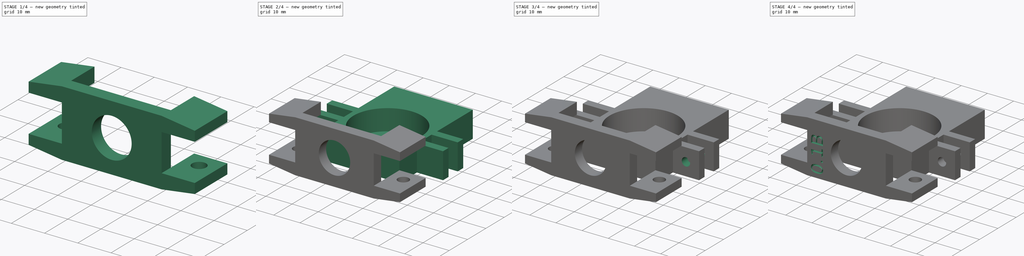
[diagram: build sequence overview — one tinted view per stage of 4, left to right]
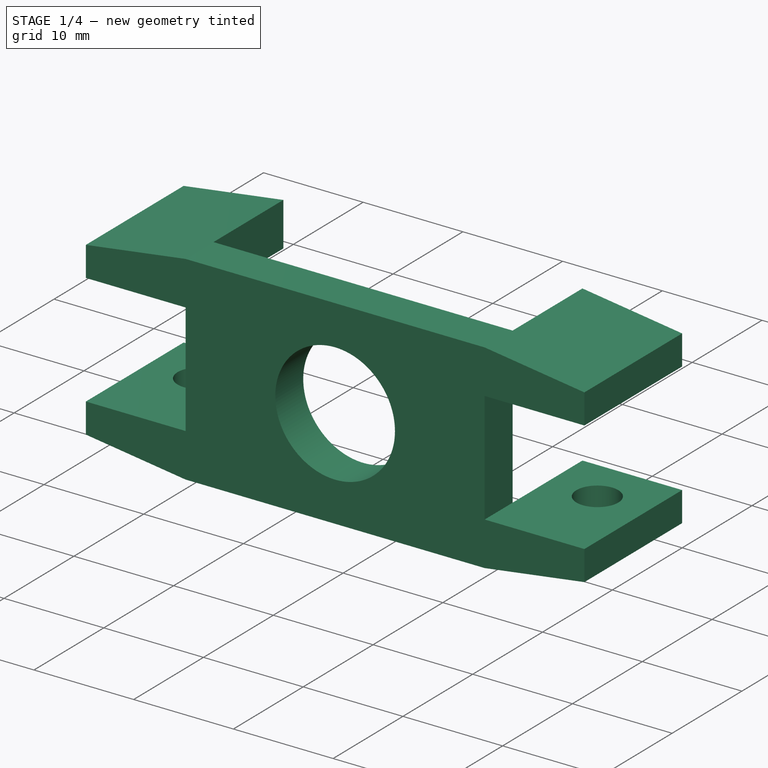
[diagram: stage 1 of 4 — iso view after this stage's code; geometry added in this stage tinted green]
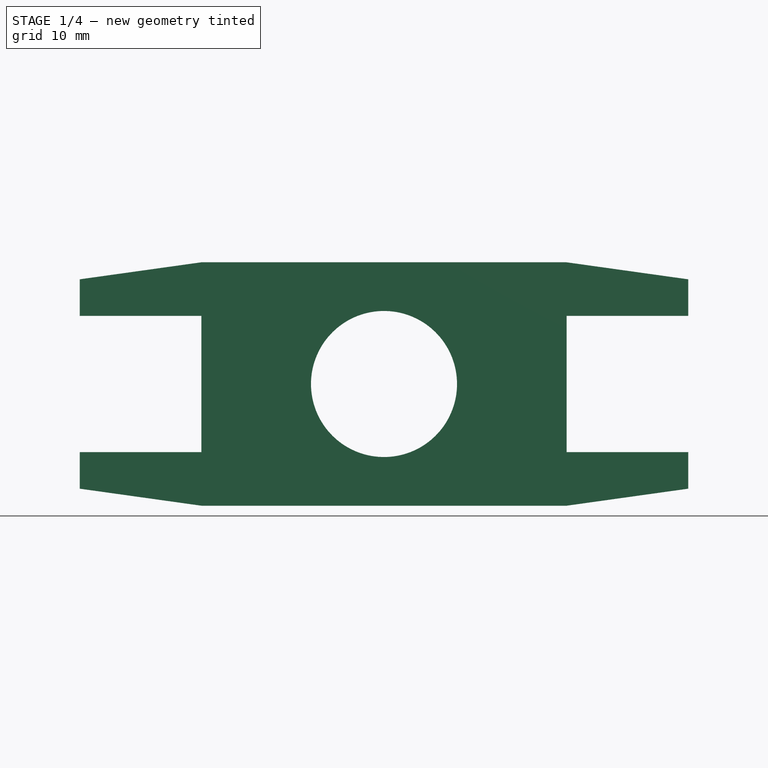
[diagram: stage 1 of 4 — front view after this stage's code; geometry added in this stage tinted green]
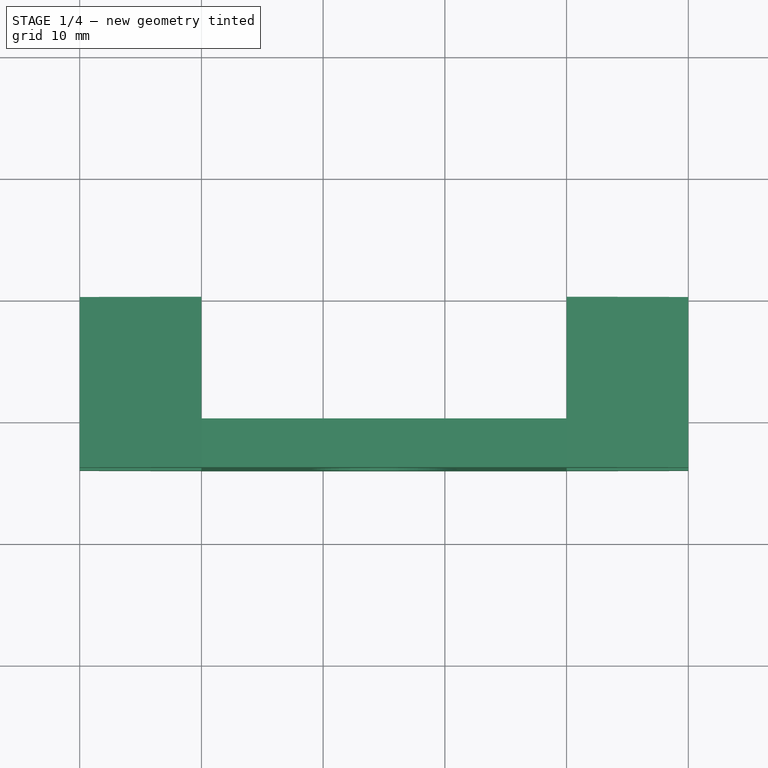
[diagram: stage 1 of 4 — top view after this stage's code; geometry added in this stage tinted green]
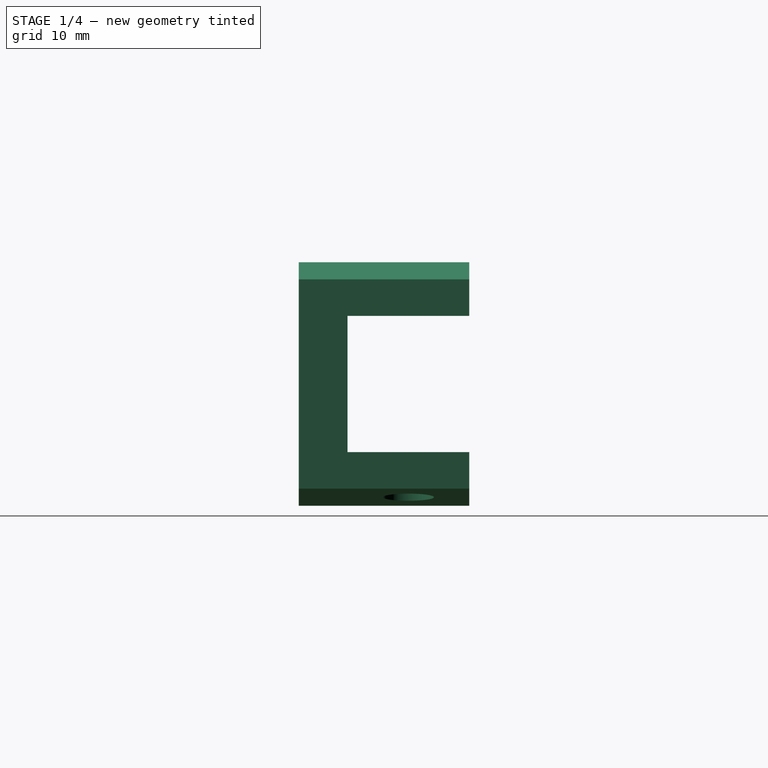
[diagram: stage 1 of 4 — right view after this stage's code; geometry added in this stage tinted green]
FCSTD DOCUMENT  (FreeCAD 1.0R39109 (Git))
Label: Front_Wheel_Hub
License: All rights reserved
LicenseURL: https://en.wikipedia.org/wiki/All_rights_reserved
objects: Sketcher::SketchObject×11, PartDesign::Pocket×7, PartDesign::Pad×2, Part::Part2DObjectPython×2, Part::Extrusion×2, Spreadsheet::Sheet×2, PartDesign::Body×2, Part::Cut×2
note: 57 computed .brp shape members not serialized (recipe doc carries the construction recipe); baked Part::Feature solids carry a one-line shape summary decoded from their .brp

FEATURE [Sketcher::SketchObject] Sketch004  label="Base Shape"
  ArcFitTolerance = 1e-06
  AttachmentSupport = -> [XZ_Plane001]
  FullyConstrained = true
  MakeInternals = false
  MapMode = 5
  Placement = pos=(0,0,0) rot=(1,0,0;1.5708rad)
  sketch-geometry (18):
    g0: LineSegment StartX=0 StartY=0 StartZ=0 EndX=30 EndY=0 EndZ=0
    g1: LineSegment StartX=30 StartY=20 StartZ=0 EndX=0 EndY=20 EndZ=0
    g2: LineSegment StartX=0 StartY=20 StartZ=0 EndX=-10 EndY=18.6 EndZ=0
    g3: LineSegment StartX=-10 StartY=18.6 StartZ=0 EndX=-10 EndY=15.6 EndZ=0
    g4: LineSegment StartX=-10 StartY=15.6 StartZ=0 EndX=-1.8e-15 EndY=15.6 EndZ=0
    g5: LineSegment StartX=-1.8e-15 StartY=4.4 StartZ=0 EndX=-10 EndY=4.4 EndZ=0
    g6: LineSegment StartX=-10 StartY=4.4 StartZ=0 EndX=-10 EndY=1.4 EndZ=0
    g7: LineSegment StartX=-10 StartY=1.4 StartZ=0 EndX=0 EndY=0 EndZ=0
    g8: LineSegment [constr] StartX=15 StartY=20 StartZ=0 EndX=15 EndY=0 EndZ=0
    g9: LineSegment StartX=30 StartY=20 StartZ=0 EndX=40 EndY=18.6 EndZ=0
    g10: LineSegment StartX=40 StartY=18.6 StartZ=0 EndX=40 EndY=15.6 EndZ=0
    g11: LineSegment StartX=40 StartY=15.6 StartZ=0 EndX=30 EndY=15.6 EndZ=0
    g12: LineSegment StartX=30 StartY=4.4 StartZ=0 EndX=40 EndY=4.4 EndZ=0
    g13: LineSegment StartX=40 StartY=4.4 StartZ=0 EndX=40 EndY=1.4 EndZ=0
    g14: LineSegment StartX=40 StartY=1.4 StartZ=0 EndX=30 EndY=-2.7e-15 EndZ=0
    g15: LineSegment StartX=-1.8e-15 StartY=15.6 StartZ=0 EndX=-1.8e-15 EndY=4.4 EndZ=0
    g16: LineSegment StartX=30 StartY=15.6 StartZ=0 EndX=30 EndY=4.4 EndZ=0
    g17: Circle CenterX=15 CenterY=10 CenterZ=0 NormalX=0 NormalY=0 NormalZ=1 AngleXU=0 Radius=6
  constraints (45):
    c: Horizontal(g0)
    c: Horizontal(g1)
    c: Distance(g0,g0) = 30
    c: Distance(g0,g1) = 20
    c: Coincident(g0,g-1)
    c: Coincident(g2,g1)
    c: Coincident(g3,g2)
    c: Vertical(g3)
    c: Coincident(g4,g3)
    c: Horizontal(g4)
    c: Horizontal(g5)
    c: Coincident(g6,g5)
    c: Vertical(g6)
    c: Coincident(g7,g6)
    c: Coincident(g7,g0)
    c: DistanceY(g3,g3) = 3
    c: Equal(g3,g6)
    c: Equal(g4,g5)
    c: DistanceX(g4,g4) = 10
    c: Distance(g0,g5) = 4.4
    c: Equal(g7,g2)
    c: Symmetric(g1,g1,g8)
    c: Symmetric(g0,g0,g8)
    c: Symmetric(g2,g9,g8)
    c: Symmetric(g2,g9,g8)
    c: Symmetric(g3,g10,g8)
    c: Symmetric(g3,g10,g8)
    c: Symmetric(g4,g11,g8)
    c: Symmetric(g4,g11,g8)
    c: Symmetric(g5,g12,g8)
    c: Symmetric(g5,g12,g8)
    c: Symmetric(g6,g13,g8)
    c: Symmetric(g6,g13,g8)
    c: Symmetric(g7,g14,g8)
    c: Symmetric(g7,g14,g8)
    c: Coincident(g15,g4)
    c: Coincident(g15,g5)
    c: Vertical(g15)
    c: Coincident(g16,g11)
    c: Coincident(g16,g12)
    c: Vertical(g16)
    c: PointOnObject(g1,g15)
    c: DistanceY(g15,g15) = 11.2
    c: Diameter(g17) = 12
    c: Symmetric(g8,g8,g17)
FEATURE [PartDesign::Pad] Pad001
  Direction = (0,-1,2e-16)
  Length = 14
  Length2 = 10
  Placement = pos=(0,0,0) rot=(1,0,0;1.5708rad)
  Profile = -> Sketch004
  ReferenceAxis = -> Sketch004 [N_Axis]
  Refine = true
  Suppressed = false
  Type = 0
FEATURE [Sketcher::SketchObject] Sketch005
  ArcFitTolerance = 1e-06
  AttachmentSupport = -> [Pad001]
  ExternalGeometry = -> [Pad001]
  FullyConstrained = true
  MakeInternals = false
  MapMode = 5
  Placement = pos=(0,2.2e-15,0) rot=(-1,0,0;1.5708rad)
  sketch-geometry (4):
    g0: LineSegment StartX=0 StartY=0 StartZ=0 EndX=0 EndY=-20 EndZ=0
    g1: LineSegment StartX=0 StartY=-20 StartZ=0 EndX=30 EndY=-20 EndZ=0
    g2: LineSegment StartX=30 StartY=-20 StartZ=0 EndX=30 EndY=0 EndZ=0
    g3: LineSegment StartX=30 StartY=0 StartZ=0 EndX=0 EndY=0 EndZ=0
  constraints (10):
    c: Coincident(g0,g1)
    c: Coincident(g1,g2)
    c: Coincident(g2,g3)
    c: Coincident(g3,g0)
    c: Vertical(g0)
    c: Vertical(g2)
    c: Horizontal(g1)
    c: Horizontal(g3)
    c: Coincident(g0,g-1)
    c: Coincident(g1,g-4)
FEATURE [PartDesign::Pocket] Pocket003
  BaseFeature = -> Pad001
  Direction = (0,-1,-2e-16)
  Length = 10
  Length2 = 5
  Placement = pos=(0,0,0) rot=(1,0,0;1.5708rad)
  Profile = -> Sketch005
  ReferenceAxis = -> Sketch005 [N_Axis]
  Refine = true
  Suppressed = false
  Type = 0
FEATURE [Sketcher::SketchObject] Sketch006
  ArcFitTolerance = 1e-06
  AttachmentSupport = -> [XY_Plane001]
  ExternalGeometry = -> [Pocket003]
  FullyConstrained = true
  MakeInternals = false
  MapMode = 5
  sketch-geometry (5):
    g0: Circle CenterX=35 CenterY=-5 CenterZ=0 NormalX=0 NormalY=0 NormalZ=1 AngleXU=0 Radius=2.1
    g1: Circle CenterX=-5 CenterY=-5 CenterZ=0 NormalX=0 NormalY=0 NormalZ=1 AngleXU=0 Radius=2.1
    g2: LineSegment [constr] StartX=-5 StartY=4.3e-15 StartZ=0 EndX=-5 EndY=-14 EndZ=0
    g3: LineSegment [constr] StartX=35 StartY=4.3e-15 StartZ=0 EndX=35 EndY=-14 EndZ=0
    g4: LineSegment [constr] StartX=-5 StartY=-5 StartZ=0 EndX=35 EndY=-5 EndZ=0
  constraints (12):
    c: Diameter(g0) = 4.2
    c: Diameter(g1) = 4.2
    c: Distance(g1,g-4) = 5
    c: Symmetric(g-5,g-5,g2)
    c: Symmetric(g-6,g-6,g2)
    c: Symmetric(g-3,g-3,g3)
    c: Symmetric(g-7,g-7,g3)
    c: PointOnObject(g1,g2)
    c: PointOnObject(g0,g3)
    c: Coincident(g4,g1)
    c: Coincident(g4,g0)
    c: Horizontal(g4)
FEATURE [PartDesign::Pocket] Pocket004
  BaseFeature = -> Pocket003
  Direction = (0,0,-1)
  Length = 0
  Length2 = 5
  Placement = pos=(0,0,0) rot=(1,0,0;1.5708rad)
  Profile = -> Sketch006
  ReferenceAxis = -> Sketch006 [N_Axis]
  Refine = true
  Suppressed = false
  Type = 3
  UpToFace = -> Pocket003 [Face17]
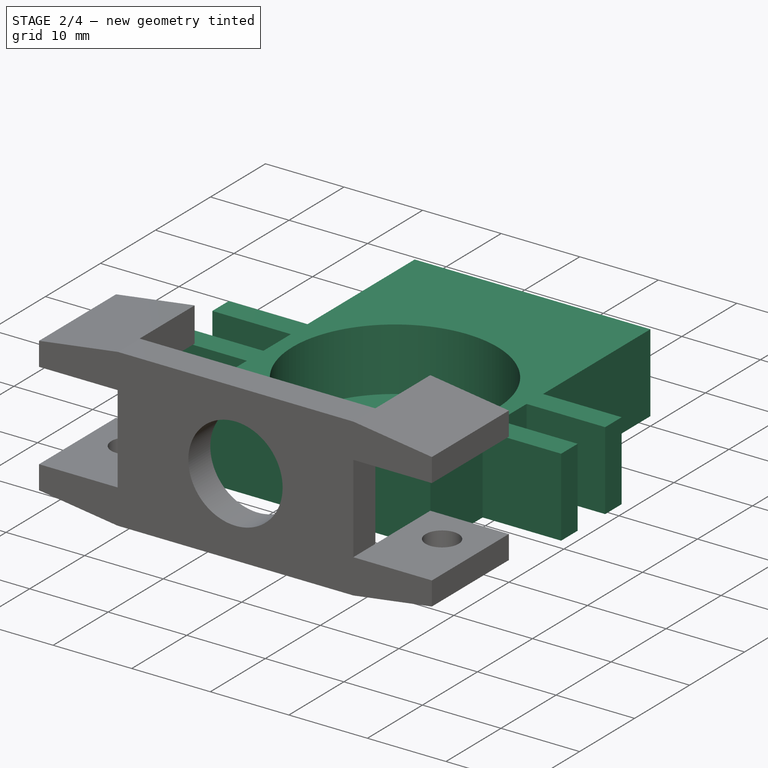
[diagram: stage 2 of 4 — iso view after this stage's code; geometry added in this stage tinted green]
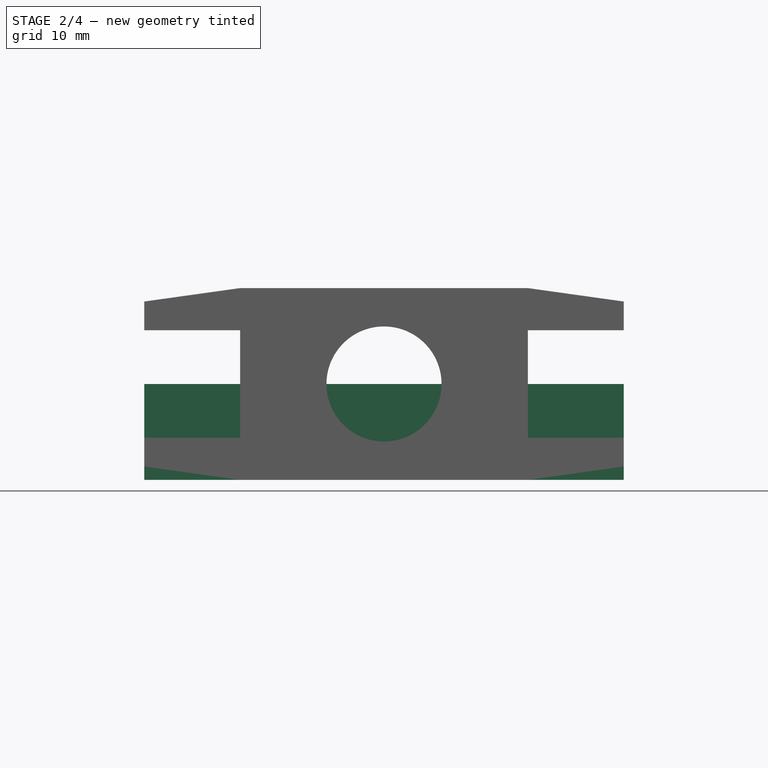
[diagram: stage 2 of 4 — front view after this stage's code; geometry added in this stage tinted green]
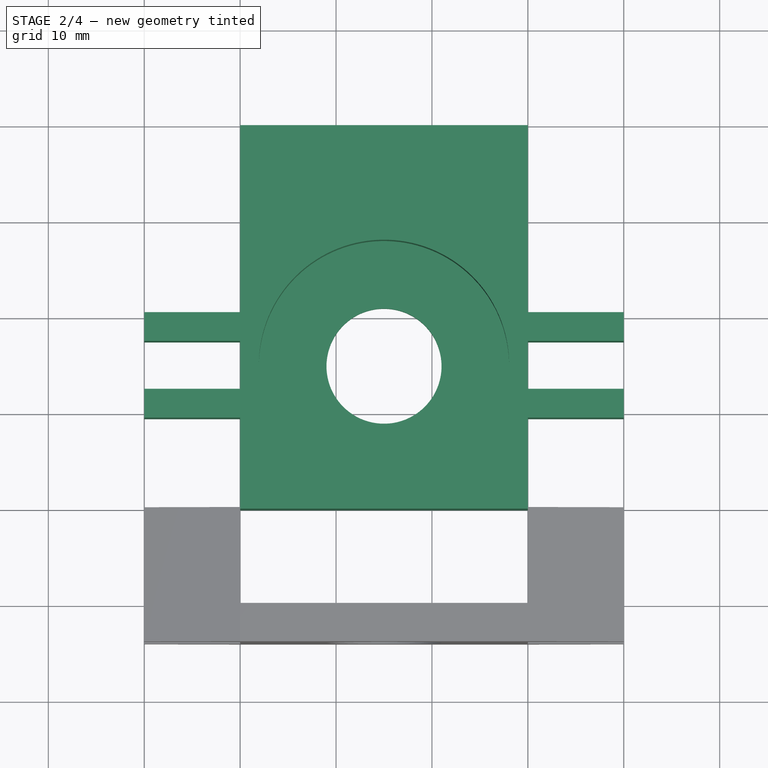
[diagram: stage 2 of 4 — top view after this stage's code; geometry added in this stage tinted green]
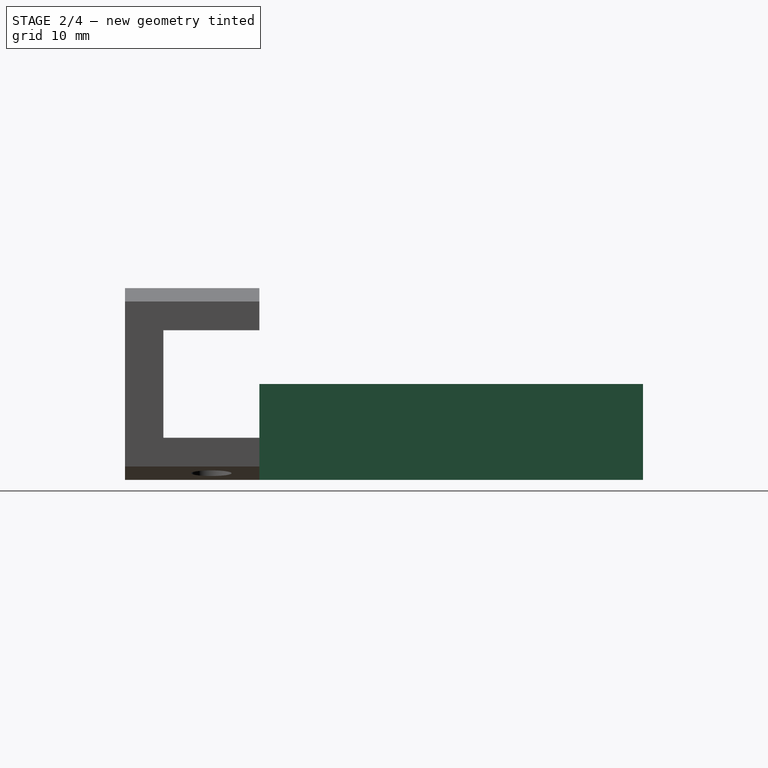
[diagram: stage 2 of 4 — right view after this stage's code; geometry added in this stage tinted green]
FEATURE [Sketcher::SketchObject] Sketch  label="Box_With_a_Hole"
  ArcFitTolerance = 1e-06
  AttachmentSupport = -> [XY_Plane]
  FullyConstrained = true
  MakeInternals = false
  MapMode = 5
  sketch-geometry (22):
    g0: LineSegment StartX=0 StartY=0 StartZ=0 EndX=30 EndY=0 EndZ=0
    g1: LineSegment StartX=30 StartY=0 StartZ=0 EndX=30 EndY=40 EndZ=0
    g2: LineSegment StartX=30 StartY=40 StartZ=0 EndX=0 EndY=40 EndZ=0
    g3: LineSegment StartX=0 StartY=40 StartZ=0 EndX=0 EndY=0 EndZ=0
    g4: Circle CenterX=15 CenterY=15 CenterZ=0 NormalX=0 NormalY=0 NormalZ=1 AngleXU=0 Radius=6
    g5: LineSegment StartX=0 StartY=20.5 StartZ=0 EndX=-10 EndY=20.5 EndZ=0
    g6: LineSegment StartX=-10 StartY=20.5 StartZ=0 EndX=-10 EndY=17.5 EndZ=0
    g7: LineSegment StartX=-10 StartY=17.5 StartZ=0 EndX=0 EndY=17.5 EndZ=0
    g8: LineSegment StartX=0 StartY=17.5 StartZ=0 EndX=0 EndY=20.5 EndZ=0
    g9: LineSegment StartX=0 StartY=12.5 StartZ=0 EndX=-10 EndY=12.5 EndZ=0
    g10: LineSegment StartX=-10 StartY=12.5 StartZ=0 EndX=-10 EndY=9.5 EndZ=0
    g11: LineSegment StartX=-10 StartY=9.5 StartZ=0 EndX=0 EndY=9.5 EndZ=0
    g12: LineSegment StartX=0 StartY=9.5 StartZ=0 EndX=0 EndY=12.5 EndZ=0
    g13: LineSegment [constr] StartX=15 StartY=0 StartZ=0 EndX=15 EndY=40 EndZ=0
    g14: LineSegment StartX=30 StartY=20.5 StartZ=0 EndX=40 EndY=20.5 EndZ=0
    g15: LineSegment StartX=40 StartY=20.5 StartZ=0 EndX=40 EndY=17.5 EndZ=0
    g16: LineSegment StartX=40 StartY=17.5 StartZ=0 EndX=30 EndY=17.5 EndZ=0
    g17: LineSegment StartX=30 StartY=17.5 StartZ=0 EndX=30 EndY=20.5 EndZ=0
    g18: LineSegment StartX=30 StartY=12.5 StartZ=0 EndX=40 EndY=12.5 EndZ=0
    g19: LineSegment StartX=40 StartY=12.5 StartZ=0 EndX=40 EndY=9.5 EndZ=0
    g20: LineSegment StartX=40 StartY=9.5 StartZ=0 EndX=30 EndY=9.5 EndZ=0
    g21: LineSegment StartX=30 StartY=9.5 StartZ=0 EndX=30 EndY=12.5 EndZ=0
  constraints (56):
    c: Coincident(g0,g1)
    c: Coincident(g1,g2)
    c: Coincident(g2,g3)
    c: Coincident(g3,g0)
    c: Horizontal(g0)
    c: Horizontal(g2)
    c: Vertical(g1)
    c: Vertical(g3)
    c: Distance(g1,g3) = 30
    c: Distance(g0,g2) = 40
    c: Coincident(g0,g-1)
    c: Diameter(g4) = 12
    c: Distance(g4,g0) = 15
    c: Distance(g4,g1) = 15
    c: Coincident(g5,g6)
    c: Coincident(g6,g7)
    c: Coincident(g7,g8)
    c: Coincident(g8,g5)
    c: Horizontal(g5)
    c: Horizontal(g7)
    c: Vertical(g6)
    c: Vertical(g8)
    c: PointOnObject(g5,g3)
    c: Coincident(g9,g10)
    c: Coincident(g10,g11)
    c: Coincident(g11,g12)
    c: Coincident(g12,g9)
    c: Horizontal(g9)
    c: Horizontal(g11)
    c: Vertical(g10)
    c: Vertical(g12)
    c: PointOnObject(g9,g3)
    c: Equal(g10,g6)
    c: Equal(g7,g11)
    c: Distance(g7,g2) = 22.5
    c: DistanceY(g6,g6) = 3
    c: Distance(g9,g7) = 5
    c: DistanceX(g11,g11) = 10
    c: Symmetric(g0,g0,g13)
    c: Symmetric(g2,g2,g13)
    c: Symmetric(g5,g14,g13)
    c: Symmetric(g5,g14,g13)
    c: Symmetric(g6,g15,g13)
    c: Symmetric(g6,g15,g13)
    c: Symmetric(g7,g16,g13)
    c: Symmetric(g7,g16,g13)
    c: Symmetric(g8,g17,g13)
    c: Symmetric(g8,g17,g13)
    c: Symmetric(g9,g18,g13)
    c: Symmetric(g9,g18,g13)
    c: Symmetric(g10,g19,g13)
    c: Symmetric(g10,g19,g13)
    c: Symmetric(g11,g20,g13)
    c: Symmetric(g11,g20,g13)
    c: Symmetric(g12,g21,g13)
    c: Symmetric(g12,g21,g13)
FEATURE [PartDesign::Pad] Pad
  Direction = (0,0,1)
  Length = 10
  Length2 = 10
  Profile = -> Sketch
  ReferenceAxis = -> Sketch [N_Axis]
  Refine = true
  Suppressed = false
  Type = 0
FEATURE [Sketcher::SketchObject] Sketch001  label="Bearing_Cavity"
  ArcFitTolerance = 1e-06
  AttachmentSupport = -> [Pad]
  ExternalGeometry = -> [Pad]
  FullyConstrained = true
  MakeInternals = false
  MapMode = 5
  Placement = pos=(0,0,10) rot=(0,0,1;0rad)
  sketch-geometry (1):
    g0: Circle CenterX=15 CenterY=15 CenterZ=0 NormalX=0 NormalY=0 NormalZ=1 AngleXU=0 Radius=13.05
  constraints (2):
    c: Diameter(g0) = 26.1
    c: Coincident(g0,g-3)
FEATURE [PartDesign::Pocket] Pocket  label="Bearing_Cavity001"
  BaseFeature = -> Pad
  Direction = (0,0,-1)
  Length = 8
  Length2 = 5
  Profile = -> Sketch001
  ReferenceAxis = -> Sketch001 [N_Axis]
  Refine = true
  Suppressed = false
  Type = 0
FEATURE [Sketcher::SketchObject] Sketch010
  ArcFitTolerance = 1e-06
  AttachmentSupport = -> [Pocket004]
  ExternalGeometry = -> [Pocket004]
  FullyConstrained = true
  MakeInternals = false
  MapMode = 5
  Placement = pos=(2.8e-15,6.9e-15,15.6) rot=(1,0,0;3.14159rad)
  sketch-geometry (2):
    g0: Circle CenterX=-5 CenterY=5 CenterZ=0 NormalX=0 NormalY=0 NormalZ=1 AngleXU=0 Radius=2.1
    g1: Circle CenterX=35 CenterY=5 CenterZ=0 NormalX=0 NormalY=0 NormalZ=1 AngleXU=0 Radius=2.1
  constraints (4):
    c: Coincident(g0,g-5)
    c: Equal(g0,g-5)
    c: Coincident(g1,g-6)
    c: Equal(g1,g-6)
FEATURE [PartDesign::Pocket] Pocket006
  BaseFeature = -> Pocket004
  Direction = (0,0,1)
  Length = 2
  Length2 = 5
  Placement = pos=(0,0,0) rot=(1,0,0;1.5708rad)
  Profile = -> Sketch010
  ReferenceAxis = -> Sketch010 [N_Axis]
  Refine = true
  Suppressed = false
  Type = 0
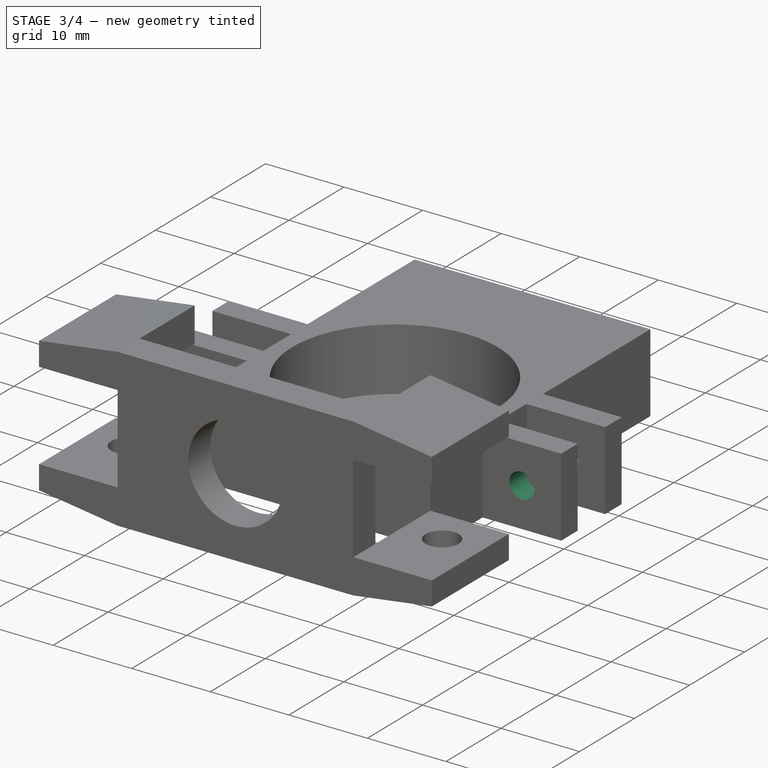
[diagram: stage 3 of 4 — iso view after this stage's code; geometry added in this stage tinted green]
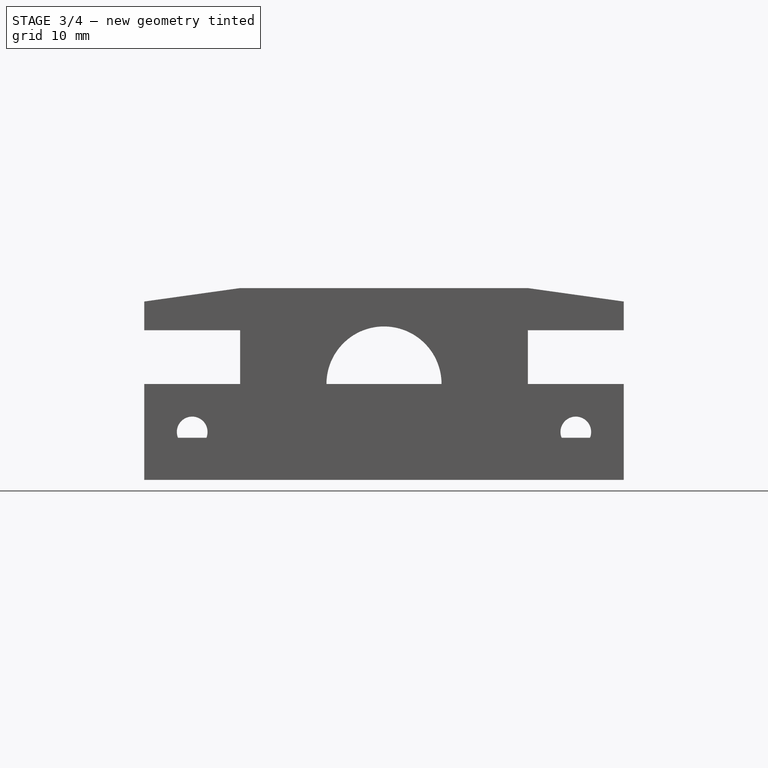
[diagram: stage 3 of 4 — front view after this stage's code; geometry added in this stage tinted green]
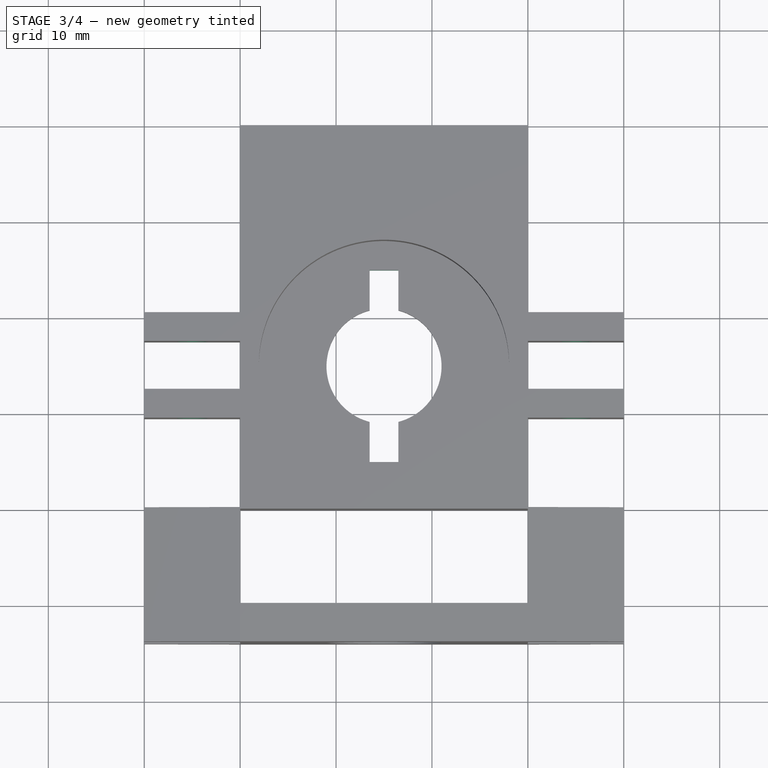
[diagram: stage 3 of 4 — top view after this stage's code; geometry added in this stage tinted green]
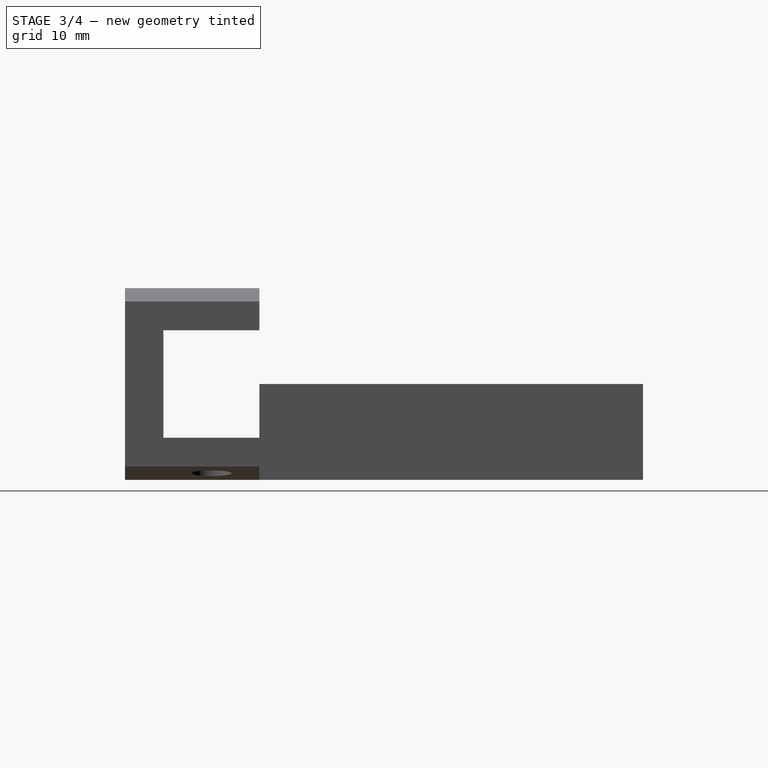
[diagram: stage 3 of 4 — right view after this stage's code; geometry added in this stage tinted green]
FEATURE [Sketcher::SketchObject] Sketch002  label="Holes for Steering Pins"
  ArcFitTolerance = 1e-06
  AttachmentSupport = -> [Pocket]
  ExternalGeometry = -> [Pocket]
  FullyConstrained = true
  MakeInternals = false
  MapMode = 5
  Placement = pos=(0,20.5,0) rot=(0,0.707107,0.707107;3.14159rad)
  sketch-geometry (4):
    g0: Circle CenterX=5 CenterY=5 CenterZ=0 NormalX=0 NormalY=0 NormalZ=1 AngleXU=0 Radius=1.6
    g1: Circle CenterX=-35 CenterY=5 CenterZ=0 NormalX=0 NormalY=0 NormalZ=1 AngleXU=0 Radius=1.6
    g2: LineSegment [constr] StartX=10 StartY=5 StartZ=0 EndX=0 EndY=5 EndZ=0
    g3: LineSegment [constr] StartX=-40 StartY=5 StartZ=0 EndX=-30 EndY=5 EndZ=0
  constraints (9):
    c: Symmetric(g-4,g-4,g2)
    c: PointOnObject(g2,g-2)
    c: Horizontal(g2)
    c: Symmetric(g-6,g-6,g3)
    c: Symmetric(g-7,g-7,g3)
    c: Symmetric(g2,g2,g0)
    c: Symmetric(g3,g3,g1)
    c: Equal(g1,g0)
    c: Diameter(g0) = 3.2
FEATURE [PartDesign::Pocket] Pocket001  label="Holes for Steering Pins001"
  BaseFeature = -> Pocket
  Direction = (0,-1,2e-16)
  Length = 0
  Length2 = 5
  Profile = -> Sketch002
  ReferenceAxis = -> Sketch002 [N_Axis]
  Refine = true
  Suppressed = false
  Type = 3
  UpToFace = -> Pocket [Face10]
FEATURE [Sketcher::SketchObject] Sketch003
  ArcFitTolerance = 1e-06
  AttachmentSupport = -> [Pocket001]
  ExternalGeometry = -> [Pocket001]
  FullyConstrained = true
  MakeInternals = false
  MapMode = 5
  Placement = pos=(0,40,0) rot=(0,0.707107,0.707107;3.14159rad)
  sketch-geometry (2):
    g0: Circle CenterX=-15 CenterY=5 CenterZ=0 NormalX=0 NormalY=0 NormalZ=1 AngleXU=0 Radius=2.1
    g1: LineSegment [constr] StartX=-15 StartY=0 StartZ=0 EndX=-15 EndY=10 EndZ=0
  constraints (4):
    c: Diameter(g0) = 4.2
    c: Symmetric(g-5,g-5,g1)
    c: Symmetric(g-4,g-4,g1)
    c: Symmetric(g1,g1,g0)
FEATURE [PartDesign::Pocket] Pocket002
  BaseFeature = -> Pocket001
  Direction = (0,-1,2e-16)
  Length = 8
  Length2 = 5
  Profile = -> Sketch003
  ReferenceAxis = -> Sketch003 [N_Axis]
  Refine = true
  Suppressed = false
  Type = 0
FEATURE [Sketcher::SketchObject] Sketch007
  ArcFitTolerance = 1e-06
  AttachmentSupport = -> [Pocket002]
  ExternalGeometry = -> [Pocket002]
  FullyConstrained = true
  MakeInternals = false
  MapMode = 5
  Placement = pos=(0,0,2) rot=(0,0,1;0rad)
  sketch-geometry (5):
    g0: LineSegment StartX=13.5 StartY=5 StartZ=0 EndX=16.5 EndY=5 EndZ=0
    g1: LineSegment StartX=16.5 StartY=5 StartZ=0 EndX=16.5 EndY=25 EndZ=0
    g2: LineSegment StartX=16.5 StartY=25 StartZ=0 EndX=13.5 EndY=25 EndZ=0
    g3: LineSegment StartX=13.5 StartY=25 StartZ=0 EndX=13.5 EndY=5 EndZ=0
    g4: LineSegment [constr] StartX=16.5 StartY=25 StartZ=0 EndX=13.5 EndY=5 EndZ=0
  constraints (13):
    c: Coincident(g0,g1)
    c: Coincident(g1,g2)
    c: Coincident(g2,g3)
    c: Coincident(g3,g0)
    c: Horizontal(g0)
    c: Horizontal(g2)
    c: Vertical(g1)
    c: Vertical(g3)
    c: Coincident(g4,g1)
    c: Coincident(g4,g0)
    c: Symmetric(g4,g4,g-3)
    c: Distance(g2,g2) = 3
    c: DistanceY(g1,g1) = 20
FEATURE [PartDesign::Pocket] Pocket005
  BaseFeature = -> Pocket002
  Direction = (0,0,-1)
  Length = 0
  Length2 = 5
  Profile = -> Sketch007
  ReferenceAxis = -> Sketch007 [N_Axis]
  Refine = true
  Suppressed = false
  Type = 3
  UpToFace = -> Pocket002 [Face5]
FEATURE [Part::Part2DObjectPython] ShapeString001  # Draft 2D object (typed FeaturePython)
  FontFile = <path>
  Fuse = false
  Justification = 6
  JustificationReference = 0
  KeepLeftMargin = false
  MakeFace = true
  ObliqueAngle = 0
  ScaleToSize = true
  Size = 5
  String = V0.1A
  Tracking = 0
  expr: String = <<V>> + <<InfoHub>>.MajorV + <<InfoHub>>.MinorV
FEATURE [Part::Extrusion] Extrude001
  Base = -> ShapeString001
  Dir = (0,0,1)
  DirMode = 2
  FaceMakerClass = Part::FaceMakerBullseye
  FaceMakerMode = 3
  LengthFwd = -1
  LengthRev = 0
  Placement = pos=(28,33,0) rot=(0,1,0;3.14159rad)
  Solid = false
  Symmetric = false
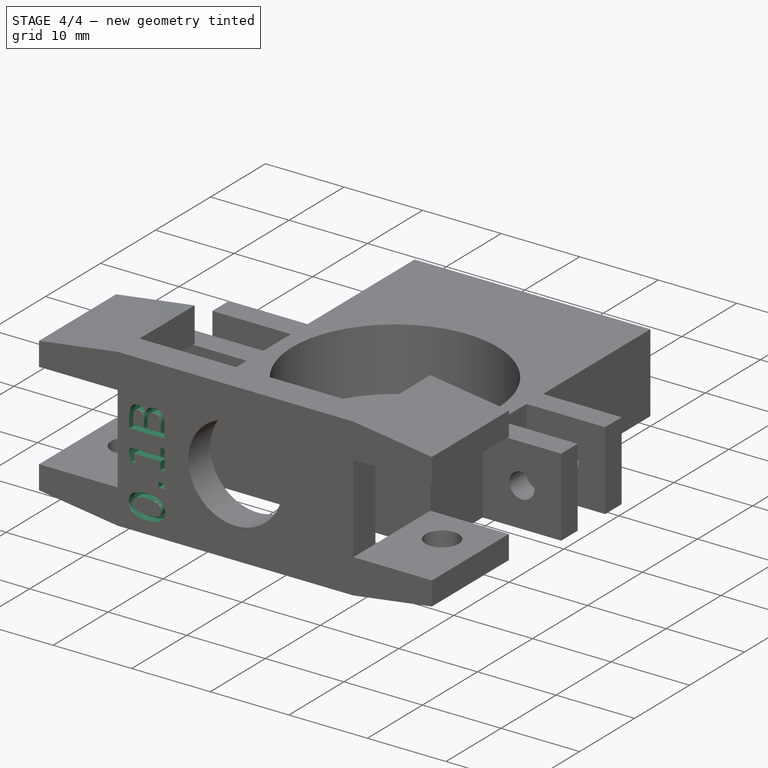
[diagram: stage 4 of 4 — iso view after this stage's code; geometry added in this stage tinted green]
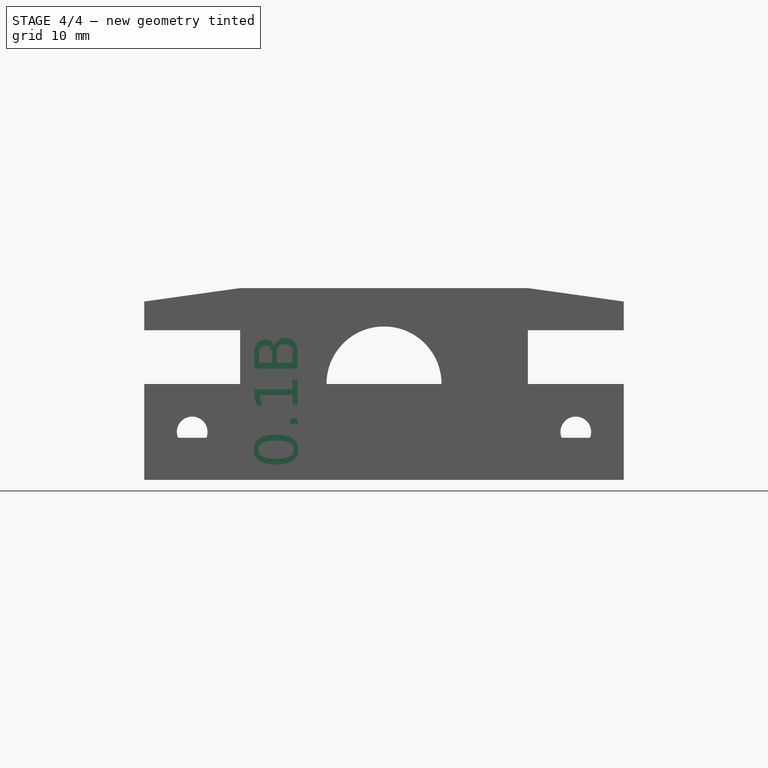
[diagram: stage 4 of 4 — front view after this stage's code; geometry added in this stage tinted green]
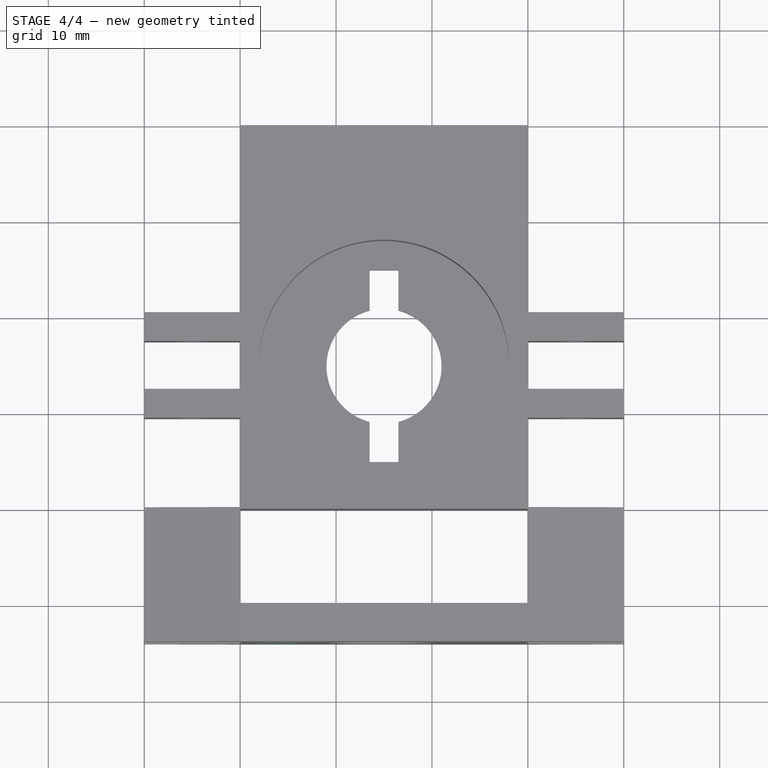
[diagram: stage 4 of 4 — top view after this stage's code; geometry added in this stage tinted green]
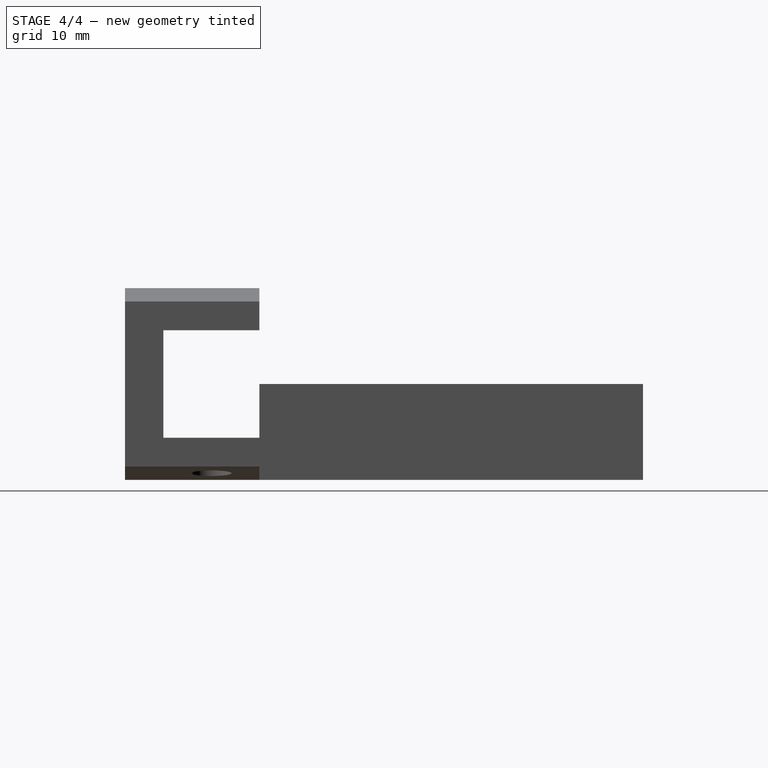
[diagram: stage 4 of 4 — right view after this stage's code; geometry added in this stage tinted green]
FEATURE [Part::Part2DObjectPython] ShapeString  # Draft 2D object (typed FeaturePython)
  FontFile = <path>
  Fuse = false
  Justification = 6
  JustificationReference = 0
  KeepLeftMargin = false
  MakeFace = true
  ObliqueAngle = 0
  ScaleToSize = true
  Size = 4.5
  String = 0.1B
  Tracking = 0
  expr: String = <<Info>>.MajorV + <<Info>>.MinorV
FEATURE [Part::Extrusion] Extrude
  Base = -> ShapeString
  Dir = (0,0,1)
  DirMode = 2
  FaceMakerClass = Part::FaceMakerBullseye
  FaceMakerMode = 3
  LengthFwd = 1
  LengthRev = 0
  Placement = pos=(5.97908,-13,1.60083) rot=(0.57735,-0.57735,0.57735;2.0944rad)
  Solid = false
  Symmetric = false
FEATURE [Sketcher::SketchObject] Sketch008  label="Version_Anchor"
  ArcFitTolerance = 1e-06
  AttachmentSupport = -> [Pocket004]
  FullyConstrained = true
  MakeInternals = false
  MapMode = 5
  Placement = pos=(0,-14,0) rot=(1,0,0;1.5708rad)
  sketch-geometry (1):
    g0: LineSegment StartX=2 StartY=2 StartZ=0 EndX=2 EndY=3 EndZ=0
  constraints (4):
    c: Vertical(g0)
    c: Distance(g0,g-1) = 2
    c: Distance(g0,g-2) = 2
    c: DistanceY(g0,g0) = 1
FEATURE [Spreadsheet::Sheet] Spreadsheet  label="Info"
  cells = A1='Name; B1(Name)='Bearing_Cap; A2='Major Version; B2(MajorV)='0.1; A3='Minor Version; B3(MinorV)='B
FEATURE [Spreadsheet::Sheet] Spreadsheet001  label="InfoHub"
  cells = A1='Name; B1(Name)='Wheel_Hub; A2='Major Version; B2(MajorV)='0.1; A3='Minor Version; B3(MinorV)='A
FEATURE [Sketcher::SketchObject] Sketch009  label="Text_Anchor"
  ArcFitTolerance = 1e-06
  AttachmentSupport = -> [Pocket005]
  ExternalGeometry = -> [Pocket005]
  FullyConstrained = true
  MakeInternals = false
  MapMode = 5
  Placement = pos=(0,0,0) rot=(1,0,0;3.14159rad)
  sketch-geometry (1):
    g0: LineSegment StartX=28 StartY=-38 StartZ=0 EndX=27 EndY=-38 EndZ=0
  constraints (4):
    c: Distance(g0) = 1
    c: Horizontal(g0)
    c: Distance(g0,g-3) = 2
    c: DistanceX(g0,g-3) = 2
FEATURE [PartDesign::Body] Body  label="Wheel_Hub"
  AllowCompound = false
  Group = -> [Sketch,Pad,Sketch001,Pocket,Sketch002,Pocket001,Sketch003,Pocket002,Sketch007,Pocket005,Sketch009]
  Origin = -> Origin
  Tip = -> Pocket005
FEATURE [Part::Cut] Cut001  label="Wheel_Hub_V0.1A"
  Base = -> Body
  Refine = true
  Tool = -> Extrude001
  expr: Label = <<InfoHub>>.Name + <<_V>> + <<InfoHub>>.MajorV + <<InfoHub>>.MinorV
FEATURE [PartDesign::Body] Body001  label="Bearing_Cap"
  AllowCompound = false
  Group = -> [Sketch004,Pad001,Sketch005,Pocket003,Sketch006,Pocket004,Sketch008,Sketch010,Pocket006]
  Origin = -> Origin001
  Tip = -> Pocket006
FEATURE [Part::Cut] Cut  label="Bearing_Cap_V0.1B"
  Base = -> Body001
  Refine = true
  Tool = -> Extrude
  expr: Label = <<Info>>.Name + <<_V>> + <<Info>>.MajorV + <<Info>>.MinorV
note: 2 file-system paths scrubbed to <path> (originals preserved in the JSON sidecar)
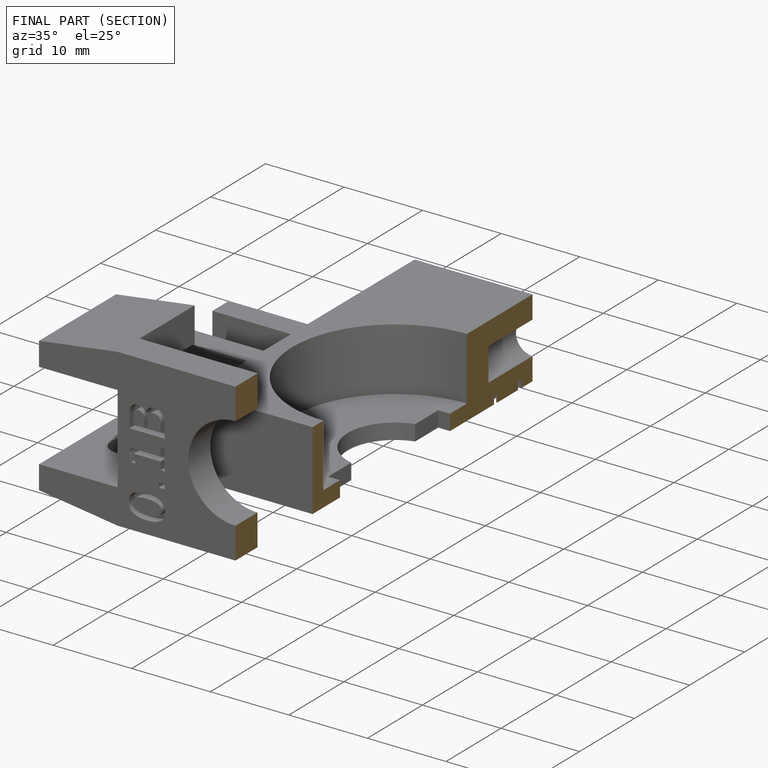
[diagram: finished part — half-section view (interior)]
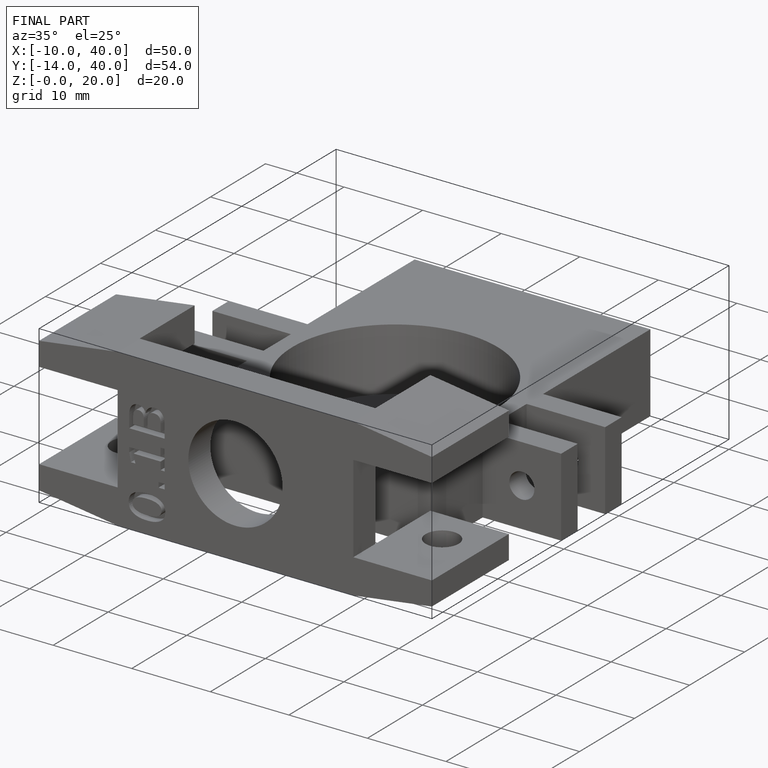
[diagram: finished part — iso view with bounding-box wireframe]
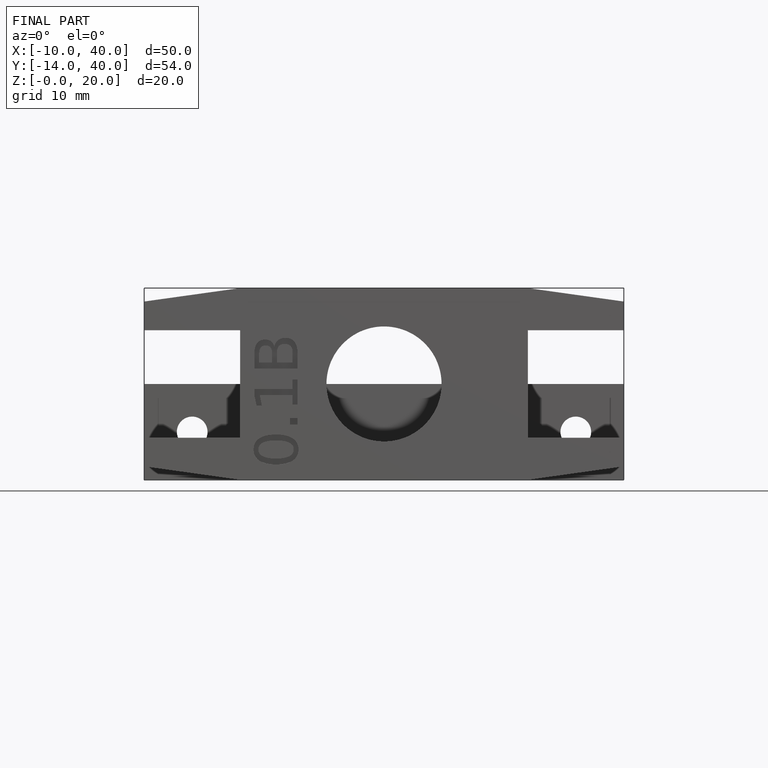
[diagram: finished part — front view with bounding-box wireframe]
